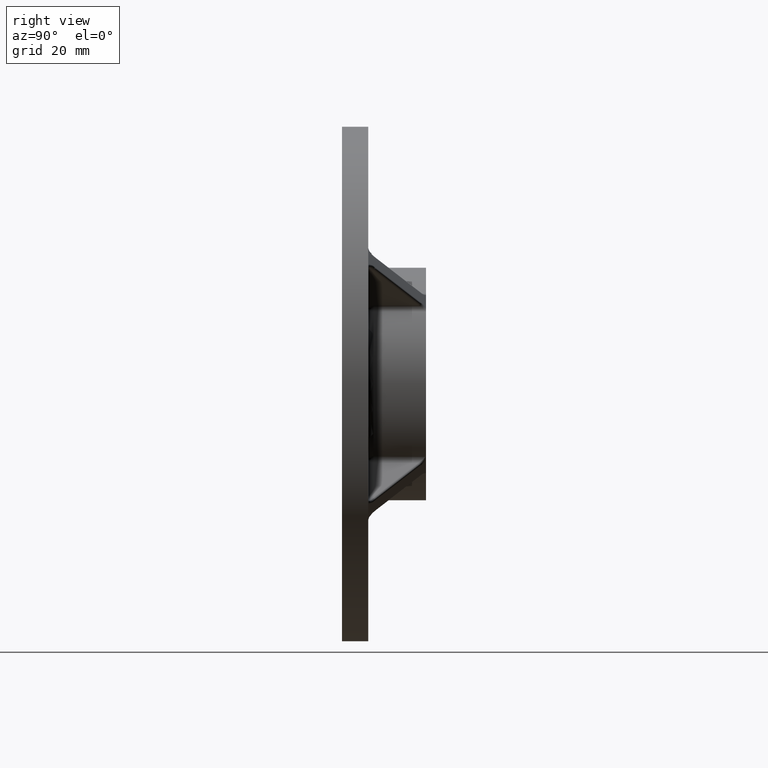
[diagram: clean part render]
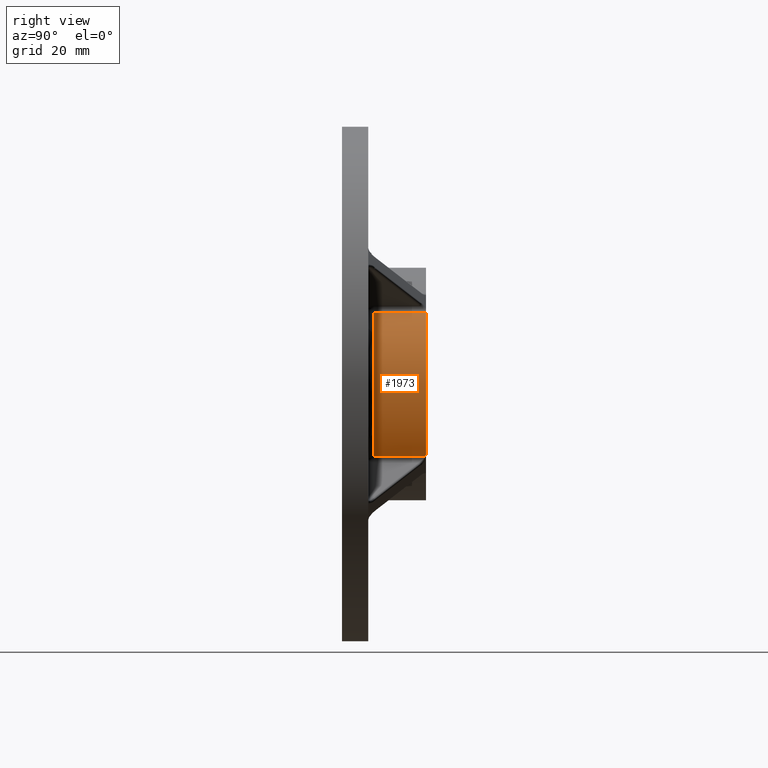
[diagram: same view with one face highlighted and labeled with its STEP entity id]
A machine part, right view. The second image highlights one B-rep face of the part: STEP entity #1973.
In plain terms, the highlighted cylindrical surface (partial cylindrical patch) has radius 22.15 mm, axis along (-0, -1, -0).
Its self-contained STEP definition (entity closure, byte-faithful):
#3 = CARTESIAN_POINT ( 'NONE',  ( 17.41302201894613300, 15.92195272664472600, 13.68974676846637600 ) ) ;
#17 = FACE_OUTER_BOUND ( 'NONE', #1588, .T. ) ;
#119 = EDGE_CURVE ( 'NONE', #2671, #2418, #2140, .T. ) ;
#138 = AXIS2_PLACEMENT_3D ( 'NONE', #3508, #1057, #2986 ) ;
#252 = CARTESIAN_POINT ( 'NONE',  ( 17.43334282716661200, 15.95107501465385300, 13.66389199466963700 ) ) ;
#291 = VERTEX_POINT ( 'NONE', #718 ) ;
#357 = CARTESIAN_POINT ( 'NONE',  ( 0.0000000000000000000, 16.00000000000000000, 0.0000000000000000000 ) ) ;
#465 = CARTESIAN_POINT ( 'NONE',  ( 17.41206106573847700, 15.92057071875852600, -13.69096890081173800 ) ) ;
#478 = ORIENTED_EDGE ( 'NONE', *, *, #1824, .T. ) ;
#510 = DIRECTION ( 'NONE',  ( 0.0000000000000000000, 1.000000000000000000, 0.0000000000000000000 ) ) ;
#718 = CARTESIAN_POINT ( 'NONE',  ( 17.41206106573847700, 6.000000000000000000, -13.69096890081173600 ) ) ;
#830 = CARTESIAN_POINT ( 'NONE',  ( 17.41206106573830000, 15.92057071875846800, 13.69096890081195800 ) ) ;
#892 = DIRECTION ( 'NONE',  ( -0.0000000000000000000, -1.000000000000000000, -0.0000000000000000000 ) ) ;
#898 = ORIENTED_EDGE ( 'NONE', *, *, #119, .T. ) ;
#1011 = DIRECTION ( 'NONE',  ( 0.0000000000000000000, 0.0000000000000000000, 1.000000000000000000 ) ) ;
#1043 = CARTESIAN_POINT ( 'NONE',  ( 17.41206106573830000, 6.000000000000000000, 13.69096890081195800 ) ) ;
#1057 = DIRECTION ( 'NONE',  ( 0.0000000000000000000, 1.000000000000000000, -0.0000000000000000000 ) ) ;
#1167 = ORIENTED_EDGE ( 'NONE', *, *, #2510, .T. ) ;
#1174 = CARTESIAN_POINT ( 'NONE',  ( 17.41206106573830000, 16.00000000000000000, 13.69096890081195800 ) ) ;
#1372 = VERTEX_POINT ( 'NONE', #2359 ) ;
#1462 = DIRECTION ( 'NONE',  ( 0.0000000000000000000, 0.0000000000000000000, -1.000000000000000000 ) ) ;
#1478 = VECTOR ( 'NONE', #510, 1000.000000000000000 ) ;
#1550 = LINE ( 'NONE', #1174, #2125 ) ;
#1588 = EDGE_LOOP ( 'NONE', ( #2406, #898, #478, #3126, #2321, #1167 ) ) ;
#1630 = CARTESIAN_POINT ( 'NONE',  ( 17.45236301005956000, 15.97627375032067900, -13.63959470659651200 ) ) ;
#1644 = CARTESIAN_POINT ( 'NONE',  ( 17.41398107995062400, 15.92333795171824900, 13.68852677876776100 ) ) ;
#1696 = VERTEX_POINT ( 'NONE', #1043 ) ;
#1824 = EDGE_CURVE ( 'NONE', #2418, #1696, #1550, .T. ) ;
#1832 = LINE ( 'NONE', #2961, #1478 ) ;
#1925 = CARTESIAN_POINT ( 'NONE',  ( 17.41302201894629300, 15.92195272664484800, -13.68974676846617900 ) ) ;
#1973 = ADVANCED_FACE ( 'NONE', ( #17 ), #2652, .T. ) ;
#1996 = CIRCLE ( 'NONE', #138, 22.14999999999999500 ) ;
#2100 = EDGE_CURVE ( 'NONE', #1696, #291, #3505, .T. ) ;
#2125 = VECTOR ( 'NONE', #2826, 1000.000000000000000 ) ;
#2140 = B_SPLINE_CURVE_WITH_KNOTS ( 'NONE', 3,
 ( #3294, #3280, #252, #2458, #1644, #3, #2719 ),
 .UNSPECIFIED., .F., .F.,
 ( 4, 3, 4 ),
 ( 0.0000000000000000000, 0.0001192978219070993400, 0.0001255382432886341600 ),
 .UNSPECIFIED. ) ;
#2161 = CARTESIAN_POINT ( 'NONE',  ( 17.41398107995071600, 15.92333795171851900, -13.68852677876764500 ) ) ;
#2232 = EDGE_CURVE ( 'NONE', #291, #2336, #1832, .T. ) ;
#2321 = ORIENTED_EDGE ( 'NONE', *, *, #2232, .T. ) ;
#2336 = VERTEX_POINT ( 'NONE', #465 ) ;
#2359 = CARTESIAN_POINT ( 'NONE',  ( 17.47197779887865500, 16.00000000000000000, -13.61442219837078600 ) ) ;
#2406 = ORIENTED_EDGE ( 'NONE', *, *, #2680, .F. ) ;
#2415 = CARTESIAN_POINT ( 'NONE',  ( 17.47197779887854800, 16.00000000000000000, 13.61442219837092100 ) ) ;
#2418 = VERTEX_POINT ( 'NONE', #830 ) ;
#2442 = CARTESIAN_POINT ( 'NONE',  ( 17.41206106573847700, 15.92057071875852600, -13.69096890081173800 ) ) ;
#2458 = CARTESIAN_POINT ( 'NONE',  ( 17.41494353934264100, 15.92471674240441700, 13.68730220026970200 ) ) ;
#2478 = B_SPLINE_CURVE_WITH_KNOTS ( 'NONE', 3,
 ( #2442, #1925, #2161, #2713, #3540, #1630, #3287 ),
 .UNSPECIFIED., .F., .F.,
 ( 4, 3, 4 ),
 ( -6.240421381595286200E-006, 0.0000000000000000000, 0.0001192978219069257300 ),
 .UNSPECIFIED. ) ;
#2510 = EDGE_CURVE ( 'NONE', #2336, #1372, #2478, .T. ) ;
#2652 = CYLINDRICAL_SURFACE ( 'NONE', #3100, 22.14999999999999500 ) ;
#2671 = VERTEX_POINT ( 'NONE', #2415 ) ;
#2680 = EDGE_CURVE ( 'NONE', #2671, #1372, #1996, .T. ) ;
#2695 = DIRECTION ( 'NONE',  ( 0.0000000000000000000, 1.000000000000000000, 0.0000000000000000000 ) ) ;
#2713 = CARTESIAN_POINT ( 'NONE',  ( 17.41494353934276900, 15.92471674240465700, -13.68730220026954200 ) ) ;
#2719 = CARTESIAN_POINT ( 'NONE',  ( 17.41206106573830000, 15.92057071875846800, 13.69096890081195800 ) ) ;
#2826 = DIRECTION ( 'NONE',  ( -0.0000000000000000000, -1.000000000000000000, -0.0000000000000000000 ) ) ;
#2961 = CARTESIAN_POINT ( 'NONE',  ( 17.41206106573847700, 16.00000000000000000, -13.69096890081173800 ) ) ;
#2986 = DIRECTION ( 'NONE',  ( 0.0000000000000000000, 0.0000000000000000000, 1.000000000000000000 ) ) ;
#3100 = AXIS2_PLACEMENT_3D ( 'NONE', #357, #892, #1462 ) ;
#3126 = ORIENTED_EDGE ( 'NONE', *, *, #2100, .T. ) ;
#3280 = CARTESIAN_POINT ( 'NONE',  ( 17.45236301005942200, 15.97627375032064600, 13.63959470659668200 ) ) ;
#3287 = CARTESIAN_POINT ( 'NONE',  ( 17.47197779887865500, 16.00000000000000000, -13.61442219837078600 ) ) ;
#3294 = CARTESIAN_POINT ( 'NONE',  ( 17.47197779887854800, 16.00000000000000000, 13.61442219837092100 ) ) ;
#3407 = AXIS2_PLACEMENT_3D ( 'NONE', #3476, #2695, #1011 ) ;
#3476 = CARTESIAN_POINT ( 'NONE',  ( 0.0000000000000000000, 6.000000000000000000, 0.0000000000000000000 ) ) ;
#3505 = CIRCLE ( 'NONE', #3407, 22.14999999999999500 ) ;
#3508 = CARTESIAN_POINT ( 'NONE',  ( 0.0000000000000000000, 16.00000000000000000, 0.0000000000000000000 ) ) ;
#3540 = CARTESIAN_POINT ( 'NONE',  ( 17.43334282716718800, 15.95107501465318300, -13.66389199466890300 ) ) ;